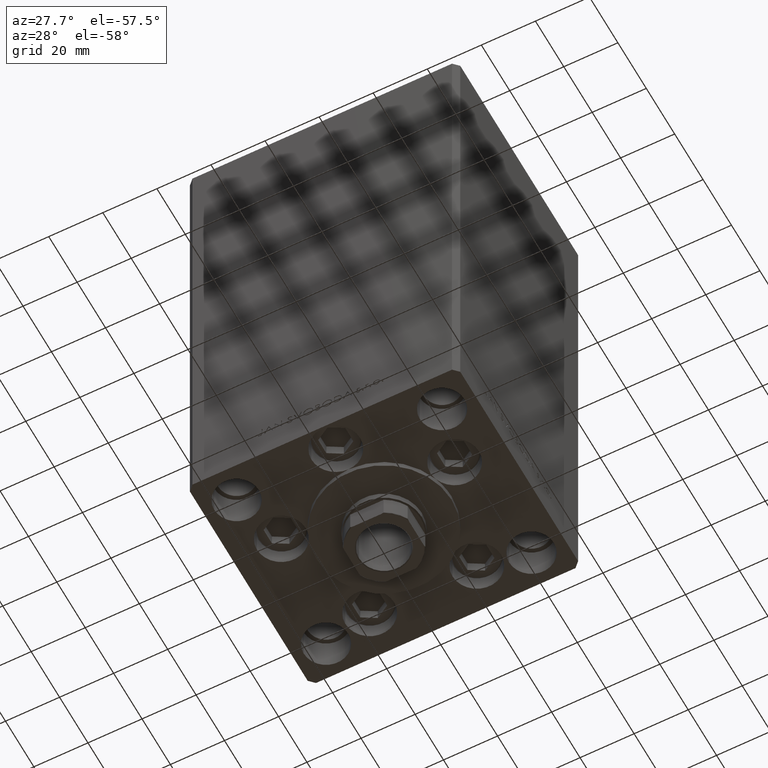
[diagram: clean part render]
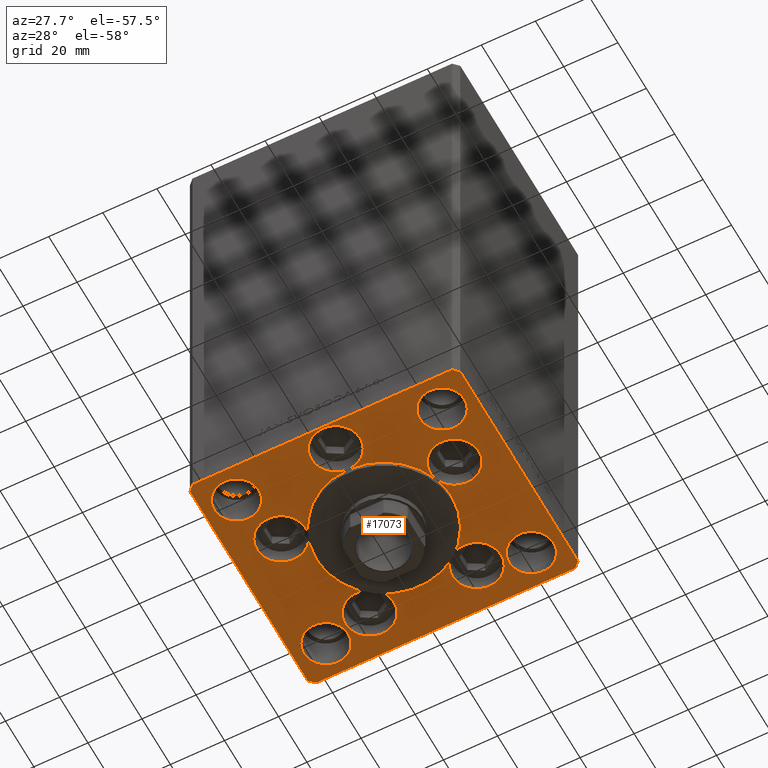
[diagram: same view with one face highlighted and labeled with its STEP entity id]
A machine part, auxiliary view. The second image highlights one B-rep face of the part: STEP entity #17073.
In plain terms, the highlighted planar face has unit normal (0, 0, -1).
Its self-contained STEP definition (entity closure, byte-faithful):
#56 = CIRCLE ( 'NONE', #8003, 8.999999999999998224 ) ;
#530 = DIRECTION ( 'NONE',  ( 0.000000000000000000, 0.000000000000000000, 1.000000000000000000 ) ) ;
#900 = ORIENTED_EDGE ( 'NONE', *, *, #15651, .F. ) ;
#922 = VECTOR ( 'NONE', #11828, 1000.000000000000000 ) ;
#992 = CIRCLE ( 'NONE', #11307, 8.250000000000000000 ) ;
#1167 = ORIENTED_EDGE ( 'NONE', *, *, #39426, .F. ) ;
#1259 = DIRECTION ( 'NONE',  ( 0.000000000000000000, 0.000000000000000000, 1.000000000000000000 ) ) ;
#1356 = CARTESIAN_POINT ( 'NONE',  ( -46.25000000000000000, 31.50000000000000000, 0.000000000000000000 ) ) ;
#1379 = AXIS2_PLACEMENT_3D ( 'NONE', #40950, #33754, #44688 ) ;
#1413 = CARTESIAN_POINT ( 'NONE',  ( -32.05550741379015989, -11.33333333333332860, 0.000000000000000000 ) ) ;
#1427 = EDGE_LOOP ( 'NONE', ( #31710, #49123 ) ) ;
#1474 = ORIENTED_EDGE ( 'NONE', *, *, #33125, .F. ) ;
#1598 = VERTEX_POINT ( 'NONE', #27124 ) ;
#1820 = CIRCLE ( 'NONE', #33562, 9.000000000000001776 ) ;
#2042 = FACE_BOUND ( 'NONE', #34910, .T. ) ;
#2212 = CARTESIAN_POINT ( 'NONE',  ( 50.00000000000000000, 41.50000000000000711, 0.000000000000000000 ) ) ;
#2310 = CARTESIAN_POINT ( 'NONE',  ( 47.99999999999999289, 43.50000000000000000, 0.000000000000000000 ) ) ;
#2368 = VERTEX_POINT ( 'NONE', #30926 ) ;
#2890 = VERTEX_POINT ( 'NONE', #34036 ) ;
#3062 = ORIENTED_EDGE ( 'NONE', *, *, #42829, .F. ) ;
#3084 = CIRCLE ( 'NONE', #29308, 8.250000000000000000 ) ;
#3112 = LINE ( 'NONE', #6595, #21084 ) ;
#3310 = ORIENTED_EDGE ( 'NONE', *, *, #44994, .F. ) ;
#3674 = EDGE_CURVE ( 'NONE', #18399, #34058, #11904, .T. ) ;
#3996 = ORIENTED_EDGE ( 'NONE', *, *, #49111, .T. ) ;
#4092 = CARTESIAN_POINT ( 'NONE',  ( 10.82068048781375147, 27.62499999999998934, 0.000000000000000000 ) ) ;
#4158 = DIRECTION ( 'NONE',  ( 1.000000000000000000, 0.000000000000000000, 0.000000000000000000 ) ) ;
#4270 = CARTESIAN_POINT ( 'NONE',  ( -32.05550741379015989, -11.33333333333332860, 0.000000000000000000 ) ) ;
#4552 = EDGE_CURVE ( 'NONE', #40796, #35261, #36540, .T. ) ;
#4769 = CARTESIAN_POINT ( 'NONE',  ( 29.74999999999999645, 31.50000000000000000, 0.000000000000000000 ) ) ;
#4839 = EDGE_CURVE ( 'NONE', #47040, #46847, #29432, .T. ) ;
#5058 = EDGE_CURVE ( 'NONE', #1598, #11025, #15925, .T. ) ;
#5407 = VERTEX_POINT ( 'NONE', #8218 ) ;
#5493 = EDGE_CURVE ( 'NONE', #7580, #45261, #56, .T. ) ;
#5659 = EDGE_CURVE ( 'NONE', #32206, #45261, #19939, .T. ) ;
#5681 = VECTOR ( 'NONE', #37873, 1000.000000000000000 ) ;
#5917 = CARTESIAN_POINT ( 'NONE',  ( 23.05550741379015633, -11.33333333333332682, 0.000000000000000000 ) ) ;
#5997 = DIRECTION ( 'NONE',  ( -0.7071067811865536790, -0.7071067811865414665, 0.000000000000000000 ) ) ;
#6230 = CARTESIAN_POINT ( 'NONE',  ( -23.57022603955158502, -8.333333333333332149, 0.000000000000000000 ) ) ;
#6461 = EDGE_LOOP ( 'NONE', ( #1167, #41976 ) ) ;
#6595 = CARTESIAN_POINT ( 'NONE',  ( -48.00000000000000711, -43.50000000000002842, 0.000000000000000000 ) ) ;
#6669 = CARTESIAN_POINT ( 'NONE',  ( 46.25000000000000000, 31.50000000000000000, 0.000000000000000000 ) ) ;
#6978 = CIRCLE ( 'NONE', #25210, 8.999999999999998224 ) ;
#7215 = CARTESIAN_POINT ( 'NONE',  ( 19.82068048781374969, 27.62499999999998934, 0.000000000000000000 ) ) ;
#7545 = AXIS2_PLACEMENT_3D ( 'NONE', #10628, #18339, #33503 ) ;
#7558 = CARTESIAN_POINT ( 'NONE',  ( 50.00000000000000000, -41.49999999999992895, 0.000000000000000000 ) ) ;
#7580 = VERTEX_POINT ( 'NONE', #4092 ) ;
#7765 = VERTEX_POINT ( 'NONE', #9278 ) ;
#8003 = AXIS2_PLACEMENT_3D ( 'NONE', #35303, #16411, #31572 ) ;
#8218 = CARTESIAN_POINT ( 'NONE',  ( 23.57022603955158502, -8.333333333333332149, 0.000000000000000000 ) ) ;
#8236 = DIRECTION ( 'NONE',  ( 1.000000000000000000, 0.000000000000000000, 0.000000000000000000 ) ) ;
#8368 = AXIS2_PLACEMENT_3D ( 'NONE', #26078, #37528, #44490 ) ;
#8699 = VERTEX_POINT ( 'NONE', #21216 ) ;
#8801 = CIRCLE ( 'NONE', #19923, 8.250000000000000000 ) ;
#8893 = CIRCLE ( 'NONE', #27944, 8.249999999999992895 ) ;
#8968 = EDGE_CURVE ( 'NONE', #14149, #16474, #8893, .T. ) ;
#9020 = DIRECTION ( 'NONE',  ( 0.000000000000000000, 0.000000000000000000, 1.000000000000000000 ) ) ;
#9278 = CARTESIAN_POINT ( 'NONE',  ( -48.00000000000000711, -43.50000000000002842, 0.000000000000000000 ) ) ;
#9294 = ORIENTED_EDGE ( 'NONE', *, *, #16887, .F. ) ;
#9361 = CIRCLE ( 'NONE', #45877, 9.000000000000001776 ) ;
#9753 = DIRECTION ( 'NONE',  ( 1.000000000000000000, 0.000000000000000000, 0.000000000000000000 ) ) ;
#9835 = ORIENTED_EDGE ( 'NONE', *, *, #24967, .F. ) ;
#9968 = LINE ( 'NONE', #40044, #37521 ) ;
#10217 = EDGE_CURVE ( 'NONE', #35261, #25865, #16885, .T. ) ;
#10309 = CIRCLE ( 'NONE', #15899, 9.000000000000000000 ) ;
#10628 = CARTESIAN_POINT ( 'NONE',  ( -38.00000000000000000, 31.50000000000000000, 0.000000000000000000 ) ) ;
#10630 = CARTESIAN_POINT ( 'NONE',  ( 0.000000000000000000, -6.938893903907228378E-15, 0.000000000000000000 ) ) ;
#10776 = EDGE_LOOP ( 'NONE', ( #44992, #35409 ) ) ;
#10943 = EDGE_CURVE ( 'NONE', #8699, #38030, #9968, .T. ) ;
#10947 = VERTEX_POINT ( 'NONE', #21170 ) ;
#11025 = VERTEX_POINT ( 'NONE', #37546 ) ;
#11237 = CIRCLE ( 'NONE', #43778, 8.999999999999998224 ) ;
#11307 = AXIS2_PLACEMENT_3D ( 'NONE', #37821, #45034, #48527 ) ;
#11432 = DIRECTION ( 'NONE',  ( 0.7071067811865474617, 0.7071067811865474617, 0.000000000000000000 ) ) ;
#11820 = ORIENTED_EDGE ( 'NONE', *, *, #10943, .T. ) ;
#11828 = DIRECTION ( 'NONE',  ( 8.360113137237620037E-17, -1.000000000000000000, 0.000000000000000000 ) ) ;
#11904 = CIRCLE ( 'NONE', #39687, 8.250000000000000000 ) ;
#11951 = VECTOR ( 'NONE', #12428, 1000.000000000000000 ) ;
#12215 = ORIENTED_EDGE ( 'NONE', *, *, #4552, .F. ) ;
#12428 = DIRECTION ( 'NONE',  ( 0.7071067811865487940, -0.7071067811865463515, 0.000000000000000000 ) ) ;
#12692 = DIRECTION ( 'NONE',  ( 1.000000000000000000, 0.000000000000000000, 0.000000000000000000 ) ) ;
#12742 = AXIS2_PLACEMENT_3D ( 'NONE', #20562, #17564, #28748 ) ;
#12807 = CARTESIAN_POINT ( 'NONE',  ( -14.57402977045128978, 20.31249999999999289, 0.000000000000000000 ) ) ;
#13095 = DIRECTION ( 'NONE',  ( 0.000000000000000000, 0.000000000000000000, 1.000000000000000000 ) ) ;
#13109 = CARTESIAN_POINT ( 'NONE',  ( 0.000000000000000000, -34.00000000000000000, 0.000000000000000000 ) ) ;
#13324 = ORIENTED_EDGE ( 'NONE', *, *, #39849, .T. ) ;
#13507 = CIRCLE ( 'NONE', #12742, 25.00000000000000000 ) ;
#13594 = DIRECTION ( 'NONE',  ( 0.000000000000000000, 0.000000000000000000, 1.000000000000000000 ) ) ;
#13728 = CARTESIAN_POINT ( 'NONE',  ( -50.00000000000000000, -41.50000000000004263, 0.000000000000000000 ) ) ;
#13773 = ORIENTED_EDGE ( 'NONE', *, *, #30735, .F. ) ;
#13962 = VERTEX_POINT ( 'NONE', #4769 ) ;
#14022 = CARTESIAN_POINT ( 'NONE',  ( -50.00000000000000711, 41.49999999999999289, 0.000000000000000000 ) ) ;
#14149 = VERTEX_POINT ( 'NONE', #23364 ) ;
#14150 = VERTEX_POINT ( 'NONE', #15656 ) ;
#14176 = CIRCLE ( 'NONE', #43565, 9.000000000000001776 ) ;
#14334 = EDGE_CURVE ( 'NONE', #14401, #2368, #16898, .T. ) ;
#14401 = VERTEX_POINT ( 'NONE', #43716 ) ;
#14717 = DIRECTION ( 'NONE',  ( 1.000000000000000000, 0.000000000000000000, 0.000000000000000000 ) ) ;
#15012 = ORIENTED_EDGE ( 'NONE', *, *, #5058, .F. ) ;
#15086 = AXIS2_PLACEMENT_3D ( 'NONE', #29726, #38166, #22022 ) ;
#15651 = EDGE_CURVE ( 'NONE', #5407, #32206, #42639, .T. ) ;
#15656 = CARTESIAN_POINT ( 'NONE',  ( 50.00000000000000000, -41.49999999999992895, 0.000000000000000000 ) ) ;
#15899 = AXIS2_PLACEMENT_3D ( 'NONE', #39099, #9020, #9753 ) ;
#15925 = CIRCLE ( 'NONE', #43696, 9.000000000000000000 ) ;
#15979 = CARTESIAN_POINT ( 'NONE',  ( -10.82068048781375147, 27.62499999999998934, 0.000000000000000000 ) ) ;
#16003 = VERTEX_POINT ( 'NONE', #6230 ) ;
#16153 = CARTESIAN_POINT ( 'NONE',  ( 0.000000000000000000, -6.938893903907228378E-15, 0.000000000000000000 ) ) ;
#16386 = EDGE_CURVE ( 'NONE', #10947, #16003, #49005, .T. ) ;
#16411 = DIRECTION ( 'NONE',  ( 0.000000000000000000, 0.000000000000000000, 1.000000000000000000 ) ) ;
#16474 = VERTEX_POINT ( 'NONE', #35234 ) ;
#16702 = DIRECTION ( 'NONE',  ( 1.000000000000000000, 1.156482317317871331E-15, 0.000000000000000000 ) ) ;
#16854 = ORIENTED_EDGE ( 'NONE', *, *, #30668, .F. ) ;
#16867 = VECTOR ( 'NONE', #20971, 1000.000000000000000 ) ;
#16885 = CIRCLE ( 'NONE', #43873, 9.000000000000000000 ) ;
#16887 = EDGE_CURVE ( 'NONE', #29565, #1598, #25215, .T. ) ;
#16898 = LINE ( 'NONE', #2212, #17298 ) ;
#17073 = ADVANCED_FACE ( 'NONE', ( #36102, #2042, #17208, #33522, #47519, #30027 ), #40053, .T. ) ;
#17114 = CIRCLE ( 'NONE', #8368, 8.249999999999992895 ) ;
#17208 = FACE_BOUND ( 'NONE', #1427, .T. ) ;
#17268 = DIRECTION ( 'NONE',  ( 1.000000000000000000, 0.000000000000000000, 0.000000000000000000 ) ) ;
#17298 = VECTOR ( 'NONE', #32059, 999.9999999999998863 ) ;
#17357 = CIRCLE ( 'NONE', #31620, 9.000000000000001776 ) ;
#17564 = DIRECTION ( 'NONE',  ( 0.000000000000000000, 0.000000000000000000, 1.000000000000000000 ) ) ;
#17603 = CIRCLE ( 'NONE', #23952, 9.000000000000001776 ) ;
#17789 = ORIENTED_EDGE ( 'NONE', *, *, #23958, .F. ) ;
#17972 = CARTESIAN_POINT ( 'NONE',  ( -32.05550741379015989, -11.33333333333332860, 0.000000000000000000 ) ) ;
#18339 = DIRECTION ( 'NONE',  ( 0.000000000000000000, 0.000000000000000000, 1.000000000000000000 ) ) ;
#18399 = VERTEX_POINT ( 'NONE', #1356 ) ;
#19192 = ORIENTED_EDGE ( 'NONE', *, *, #31047, .T. ) ;
#19335 = DIRECTION ( 'NONE',  ( 0.000000000000000000, 0.000000000000000000, 1.000000000000000000 ) ) ;
#19356 = CIRCLE ( 'NONE', #25667, 25.00000000000000000 ) ;
#19495 = EDGE_CURVE ( 'NONE', #11025, #29565, #26897, .T. ) ;
#19728 = CARTESIAN_POINT ( 'NONE',  ( 0.000000000000000000, -34.00000000000000000, 0.000000000000000000 ) ) ;
#19923 = AXIS2_PLACEMENT_3D ( 'NONE', #45871, #35185, #30968 ) ;
#19939 = CIRCLE ( 'NONE', #31858, 25.00000000000000000 ) ;
#20152 = CARTESIAN_POINT ( 'NONE',  ( -50.00000000000000000, -41.50000000000004263, 0.000000000000000000 ) ) ;
#20272 = EDGE_LOOP ( 'NONE', ( #3996, #13324, #47211, #19192, #26875, #46260, #11820, #29970 ) ) ;
#20562 = CARTESIAN_POINT ( 'NONE',  ( 0.000000000000000000, -6.938893903907228378E-15, 0.000000000000000000 ) ) ;
#20615 = EDGE_CURVE ( 'NONE', #13962, #40860, #3084, .T. ) ;
#20838 = DIRECTION ( 'NONE',  ( 1.000000000000000000, 0.000000000000000000, 0.000000000000000000 ) ) ;
#20915 = VERTEX_POINT ( 'NONE', #5917 ) ;
#20971 = DIRECTION ( 'NONE',  ( -1.000000000000000000, -2.891205793294678326E-16, 0.000000000000000000 ) ) ;
#21084 = VECTOR ( 'NONE', #16702, 1000.000000000000000 ) ;
#21170 = CARTESIAN_POINT ( 'NONE',  ( -25.00000000000000000, -6.938893903907228378E-15, 0.000000000000000000 ) ) ;
#21216 = CARTESIAN_POINT ( 'NONE',  ( -48.00000000000000000, 43.49999999999997158, 0.000000000000000000 ) ) ;
#21241 = CARTESIAN_POINT ( 'NONE',  ( -38.00000000000000711, -31.50000000000000711, 0.000000000000000000 ) ) ;
#21725 = CARTESIAN_POINT ( 'NONE',  ( 0.000000000000000000, -34.00000000000000000, 0.000000000000000000 ) ) ;
#21798 = ORIENTED_EDGE ( 'NONE', *, *, #28236, .F. ) ;
#22022 = DIRECTION ( 'NONE',  ( 1.000000000000000000, 0.000000000000000000, 0.000000000000000000 ) ) ;
#22067 = DIRECTION ( 'NONE',  ( 0.000000000000000000, 0.000000000000000000, 1.000000000000000000 ) ) ;
#22144 = ORIENTED_EDGE ( 'NONE', *, *, #43154, .F. ) ;
#22338 = DIRECTION ( 'NONE',  ( -0.000000000000000000, 0.000000000000000000, 1.000000000000000000 ) ) ;
#22393 = DIRECTION ( 'NONE',  ( 1.000000000000000000, 0.000000000000000000, 0.000000000000000000 ) ) ;
#22581 = DIRECTION ( 'NONE',  ( 1.000000000000000000, 0.000000000000000000, 0.000000000000000000 ) ) ;
#22769 = ORIENTED_EDGE ( 'NONE', *, *, #5659, .F. ) ;
#23358 = DIRECTION ( 'NONE',  ( 0.000000000000000000, 0.000000000000000000, 1.000000000000000000 ) ) ;
#23364 = CARTESIAN_POINT ( 'NONE',  ( 29.75000000000001066, -31.50000000000000711, 0.000000000000000000 ) ) ;
#23664 = DIRECTION ( 'NONE',  ( 1.000000000000000000, 0.000000000000000000, 0.000000000000000000 ) ) ;
#23952 = AXIS2_PLACEMENT_3D ( 'NONE', #4270, #530, #24306 ) ;
#23958 = EDGE_CURVE ( 'NONE', #25865, #10947, #13507, .T. ) ;
#23993 = CIRCLE ( 'NONE', #25568, 25.00000000000000000 ) ;
#24306 = DIRECTION ( 'NONE',  ( 1.000000000000000000, 0.000000000000000000, 0.000000000000000000 ) ) ;
#24556 = CARTESIAN_POINT ( 'NONE',  ( 19.82068048781374969, 27.62499999999998934, 0.000000000000000000 ) ) ;
#24617 = EDGE_LOOP ( 'NONE', ( #21798, #46340, #22144, #16854, #22769, #900, #1474, #45696, #3062, #39781, #15012, #9294, #28088, #37517, #38784, #13773, #3310, #25980, #17789, #33424, #12215, #30969 ) ) ;
#24928 = DIRECTION ( 'NONE',  ( 1.000000000000000000, 0.000000000000000000, 0.000000000000000000 ) ) ;
#24967 = EDGE_CURVE ( 'NONE', #40860, #13962, #8801, .T. ) ;
#25210 = AXIS2_PLACEMENT_3D ( 'NONE', #7215, #25613, #22393 ) ;
#25215 = CIRCLE ( 'NONE', #29982, 9.000000000000000000 ) ;
#25568 = AXIS2_PLACEMENT_3D ( 'NONE', #34970, #19335, #4158 ) ;
#25613 = DIRECTION ( 'NONE',  ( 0.000000000000000000, 0.000000000000000000, 1.000000000000000000 ) ) ;
#25667 = AXIS2_PLACEMENT_3D ( 'NONE', #16153, #23358, #45978 ) ;
#25865 = VERTEX_POINT ( 'NONE', #12807 ) ;
#25980 = ORIENTED_EDGE ( 'NONE', *, *, #16386, .F. ) ;
#26022 = DIRECTION ( 'NONE',  ( 0.000000000000000000, 0.000000000000000000, 1.000000000000000000 ) ) ;
#26078 = CARTESIAN_POINT ( 'NONE',  ( 38.00000000000000711, -31.50000000000000711, 0.000000000000000000 ) ) ;
#26409 = CARTESIAN_POINT ( 'NONE',  ( 32.05550741379015989, -11.33333333333332860, 0.000000000000000000 ) ) ;
#26651 = VERTEX_POINT ( 'NONE', #36122 ) ;
#26670 = VERTEX_POINT ( 'NONE', #13728 ) ;
#26875 = ORIENTED_EDGE ( 'NONE', *, *, #14334, .T. ) ;
#26897 = CIRCLE ( 'NONE', #38780, 9.000000000000000000 ) ;
#27124 = CARTESIAN_POINT ( 'NONE',  ( 9.000000000000000000, -34.00000000000000000, 0.000000000000000000 ) ) ;
#27910 = DIRECTION ( 'NONE',  ( 1.000000000000000000, 0.000000000000000000, 0.000000000000000000 ) ) ;
#27944 = AXIS2_PLACEMENT_3D ( 'NONE', #40035, #48221, #48473 ) ;
#28088 = ORIENTED_EDGE ( 'NONE', *, *, #19495, .F. ) ;
#28236 = EDGE_CURVE ( 'NONE', #45261, #25865, #23993, .T. ) ;
#28410 = LINE ( 'NONE', #2310, #16867 ) ;
#28748 = DIRECTION ( 'NONE',  ( 1.000000000000000000, 0.000000000000000000, 0.000000000000000000 ) ) ;
#28753 = DIRECTION ( 'NONE',  ( 0.000000000000000000, 0.000000000000000000, 1.000000000000000000 ) ) ;
#28927 = DIRECTION ( 'NONE',  ( 0.000000000000000000, 0.000000000000000000, 1.000000000000000000 ) ) ;
#29128 = AXIS2_PLACEMENT_3D ( 'NONE', #48120, #28753, #43908 ) ;
#29169 = CARTESIAN_POINT ( 'NONE',  ( -41.05550741379015989, -11.33333333333332682, 0.000000000000000000 ) ) ;
#29308 = AXIS2_PLACEMENT_3D ( 'NONE', #34838, #1259, #12692 ) ;
#29432 = CIRCLE ( 'NONE', #34196, 8.250000000000000000 ) ;
#29565 = VERTEX_POINT ( 'NONE', #48696 ) ;
#29667 = CARTESIAN_POINT ( 'NONE',  ( -46.25000000000000711, -31.50000000000000711, 0.000000000000000000 ) ) ;
#29726 = CARTESIAN_POINT ( 'NONE',  ( -19.82068048781374969, 27.62499999999998934, 0.000000000000000000 ) ) ;
#29969 = EDGE_CURVE ( 'NONE', #38030, #26670, #30730, .T. ) ;
#29970 = ORIENTED_EDGE ( 'NONE', *, *, #29969, .T. ) ;
#29982 = AXIS2_PLACEMENT_3D ( 'NONE', #21725, #28927, #48549 ) ;
#30027 = FACE_OUTER_BOUND ( 'NONE', #20272, .T. ) ;
#30668 = EDGE_CURVE ( 'NONE', #45261, #43125, #11237, .T. ) ;
#30730 = LINE ( 'NONE', #45889, #922 ) ;
#30735 = EDGE_CURVE ( 'NONE', #44133, #2890, #17603, .T. ) ;
#30926 = CARTESIAN_POINT ( 'NONE',  ( 47.99999999999999289, 43.50000000000000000, 0.000000000000000000 ) ) ;
#30968 = DIRECTION ( 'NONE',  ( 1.000000000000000000, 0.000000000000000000, 0.000000000000000000 ) ) ;
#30969 = ORIENTED_EDGE ( 'NONE', *, *, #48715, .F. ) ;
#31047 = EDGE_CURVE ( 'NONE', #14150, #14401, #34416, .T. ) ;
#31547 = AXIS2_PLACEMENT_3D ( 'NONE', #10630, #22067, #42179 ) ;
#31572 = DIRECTION ( 'NONE',  ( 1.000000000000000000, 0.000000000000000000, 0.000000000000000000 ) ) ;
#31592 = EDGE_CURVE ( 'NONE', #2368, #8699, #28410, .T. ) ;
#31620 = AXIS2_PLACEMENT_3D ( 'NONE', #34270, #38719, #46189 ) ;
#31710 = ORIENTED_EDGE ( 'NONE', *, *, #39668, .F. ) ;
#31858 = AXIS2_PLACEMENT_3D ( 'NONE', #48188, #41209, #34020 ) ;
#32059 = DIRECTION ( 'NONE',  ( -0.7071067811865512365, 0.7071067811865439090, 0.000000000000000000 ) ) ;
#32206 = VERTEX_POINT ( 'NONE', #45593 ) ;
#32438 = AXIS2_PLACEMENT_3D ( 'NONE', #1413, #13095, #46418 ) ;
#32460 = EDGE_CURVE ( 'NONE', #46847, #47040, #992, .T. ) ;
#33017 = DIRECTION ( 'NONE',  ( 1.000000000000000000, 0.000000000000000000, 0.000000000000000000 ) ) ;
#33125 = EDGE_CURVE ( 'NONE', #37574, #5407, #1820, .T. ) ;
#33424 = ORIENTED_EDGE ( 'NONE', *, *, #10217, .F. ) ;
#33503 = DIRECTION ( 'NONE',  ( 1.000000000000000000, 0.000000000000000000, 0.000000000000000000 ) ) ;
#33522 = FACE_BOUND ( 'NONE', #10776, .T. ) ;
#33562 = AXIS2_PLACEMENT_3D ( 'NONE', #44307, #48535, #48280 ) ;
#33754 = DIRECTION ( 'NONE',  ( 0.000000000000000000, 0.000000000000000000, 1.000000000000000000 ) ) ;
#34020 = DIRECTION ( 'NONE',  ( 1.000000000000000000, 0.000000000000000000, 0.000000000000000000 ) ) ;
#34036 = CARTESIAN_POINT ( 'NONE',  ( -23.05550741379015633, -11.33333333333332860, 0.000000000000000000 ) ) ;
#34058 = VERTEX_POINT ( 'NONE', #36207 ) ;
#34196 = AXIS2_PLACEMENT_3D ( 'NONE', #21241, #47339, #17268 ) ;
#34270 = CARTESIAN_POINT ( 'NONE',  ( 32.05550741379015989, -11.33333333333332860, 0.000000000000000000 ) ) ;
#34416 = LINE ( 'NONE', #7558, #5681 ) ;
#34796 = EDGE_CURVE ( 'NONE', #26651, #14150, #44743, .T. ) ;
#34838 = CARTESIAN_POINT ( 'NONE',  ( 38.00000000000000000, 31.50000000000000000, 0.000000000000000000 ) ) ;
#34876 = EDGE_CURVE ( 'NONE', #16003, #11025, #19356, .T. ) ;
#34910 = EDGE_LOOP ( 'NONE', ( #9835, #40173 ) ) ;
#34923 = CARTESIAN_POINT ( 'NONE',  ( -28.82068048781374969, 27.62499999999998934, 0.000000000000000000 ) ) ;
#34970 = CARTESIAN_POINT ( 'NONE',  ( 0.000000000000000000, -6.938893903907228378E-15, 0.000000000000000000 ) ) ;
#35185 = DIRECTION ( 'NONE',  ( 0.000000000000000000, 0.000000000000000000, 1.000000000000000000 ) ) ;
#35234 = CARTESIAN_POINT ( 'NONE',  ( 46.25000000000000000, -31.50000000000000711, 0.000000000000000000 ) ) ;
#35261 = VERTEX_POINT ( 'NONE', #34923 ) ;
#35303 = CARTESIAN_POINT ( 'NONE',  ( 19.82068048781374969, 27.62499999999998934, 0.000000000000000000 ) ) ;
#35409 = ORIENTED_EDGE ( 'NONE', *, *, #32460, .F. ) ;
#36102 = FACE_BOUND ( 'NONE', #24617, .T. ) ;
#36122 = CARTESIAN_POINT ( 'NONE',  ( 48.00000000000000711, -43.49999999999992184, 0.000000000000000000 ) ) ;
#36207 = CARTESIAN_POINT ( 'NONE',  ( -29.75000000000000000, 31.50000000000000000, 0.000000000000000000 ) ) ;
#36404 = CIRCLE ( 'NONE', #32438, 9.000000000000001776 ) ;
#36540 = CIRCLE ( 'NONE', #15086, 9.000000000000000000 ) ;
#37517 = ORIENTED_EDGE ( 'NONE', *, *, #34876, .F. ) ;
#37521 = VECTOR ( 'NONE', #5997, 1000.000000000000000 ) ;
#37528 = DIRECTION ( 'NONE',  ( 0.000000000000000000, 0.000000000000000000, 1.000000000000000000 ) ) ;
#37546 = CARTESIAN_POINT ( 'NONE',  ( 0.000000000000000000, -25.00000000000000000, 0.000000000000000000 ) ) ;
#37574 = VERTEX_POINT ( 'NONE', #42218 ) ;
#37821 = CARTESIAN_POINT ( 'NONE',  ( -38.00000000000000711, -31.50000000000000711, 0.000000000000000000 ) ) ;
#37873 = DIRECTION ( 'NONE',  ( 0.000000000000000000, 1.000000000000000000, 0.000000000000000000 ) ) ;
#38030 = VERTEX_POINT ( 'NONE', #14022 ) ;
#38166 = DIRECTION ( 'NONE',  ( 0.000000000000000000, 0.000000000000000000, 1.000000000000000000 ) ) ;
#38369 = DIRECTION ( 'NONE',  ( 0.000000000000000000, 0.000000000000000000, 1.000000000000000000 ) ) ;
#38711 = AXIS2_PLACEMENT_3D ( 'NONE', #41197, #22338, #22581 ) ;
#38719 = DIRECTION ( 'NONE',  ( 0.000000000000000000, 0.000000000000000000, 1.000000000000000000 ) ) ;
#38780 = AXIS2_PLACEMENT_3D ( 'NONE', #13109, #13594, #20838 ) ;
#38784 = ORIENTED_EDGE ( 'NONE', *, *, #43686, .F. ) ;
#39099 = CARTESIAN_POINT ( 'NONE',  ( -19.82068048781374969, 27.62499999999998934, 0.000000000000000000 ) ) ;
#39426 = EDGE_CURVE ( 'NONE', #16474, #14149, #17114, .T. ) ;
#39668 = EDGE_CURVE ( 'NONE', #34058, #18399, #48842, .T. ) ;
#39687 = AXIS2_PLACEMENT_3D ( 'NONE', #43821, #40319, #24928 ) ;
#39781 = ORIENTED_EDGE ( 'NONE', *, *, #41151, .F. ) ;
#39819 = CARTESIAN_POINT ( 'NONE',  ( -29.75000000000000711, -31.50000000000000711, 0.000000000000000000 ) ) ;
#39849 = EDGE_CURVE ( 'NONE', #7765, #26651, #3112, .T. ) ;
#40035 = CARTESIAN_POINT ( 'NONE',  ( 38.00000000000000711, -31.50000000000000711, 0.000000000000000000 ) ) ;
#40044 = CARTESIAN_POINT ( 'NONE',  ( -48.00000000000000000, 43.49999999999997158, 0.000000000000000000 ) ) ;
#40053 = PLANE ( 'NONE',  #38711 ) ;
#40173 = ORIENTED_EDGE ( 'NONE', *, *, #20615, .F. ) ;
#40319 = DIRECTION ( 'NONE',  ( 0.000000000000000000, 0.000000000000000000, 1.000000000000000000 ) ) ;
#40796 = VERTEX_POINT ( 'NONE', #15979 ) ;
#40860 = VERTEX_POINT ( 'NONE', #6669 ) ;
#40950 = CARTESIAN_POINT ( 'NONE',  ( 0.000000000000000000, -6.938893903907228378E-15, 0.000000000000000000 ) ) ;
#41151 = EDGE_CURVE ( 'NONE', #11025, #5407, #48182, .T. ) ;
#41197 = CARTESIAN_POINT ( 'NONE',  ( 0.000000000000000000, 0.000000000000000000, 0.000000000000000000 ) ) ;
#41209 = DIRECTION ( 'NONE',  ( 0.000000000000000000, 0.000000000000000000, 1.000000000000000000 ) ) ;
#41680 = CARTESIAN_POINT ( 'NONE',  ( -19.82068048781374969, 27.62499999999998934, 0.000000000000000000 ) ) ;
#41976 = ORIENTED_EDGE ( 'NONE', *, *, #8968, .F. ) ;
#42179 = DIRECTION ( 'NONE',  ( 1.000000000000000000, 0.000000000000000000, 0.000000000000000000 ) ) ;
#42218 = CARTESIAN_POINT ( 'NONE',  ( 41.05550741379015989, -11.33333333333332860, 0.000000000000000000 ) ) ;
#42639 = CIRCLE ( 'NONE', #31547, 25.00000000000000000 ) ;
#42829 = EDGE_CURVE ( 'NONE', #5407, #20915, #9361, .T. ) ;
#43125 = VERTEX_POINT ( 'NONE', #47755 ) ;
#43154 = EDGE_CURVE ( 'NONE', #43125, #7580, #6978, .T. ) ;
#43245 = LINE ( 'NONE', #20152, #11951 ) ;
#43565 = AXIS2_PLACEMENT_3D ( 'NONE', #17972, #44561, #14717 ) ;
#43686 = EDGE_CURVE ( 'NONE', #2890, #16003, #36404, .T. ) ;
#43696 = AXIS2_PLACEMENT_3D ( 'NONE', #19728, #38369, #27910 ) ;
#43716 = CARTESIAN_POINT ( 'NONE',  ( 50.00000000000000000, 41.50000000000000711, 0.000000000000000000 ) ) ;
#43778 = AXIS2_PLACEMENT_3D ( 'NONE', #24556, #46928, #8236 ) ;
#43821 = CARTESIAN_POINT ( 'NONE',  ( -38.00000000000000000, 31.50000000000000000, 0.000000000000000000 ) ) ;
#43873 = AXIS2_PLACEMENT_3D ( 'NONE', #41680, #26022, #33017 ) ;
#43908 = DIRECTION ( 'NONE',  ( 1.000000000000000000, 0.000000000000000000, 0.000000000000000000 ) ) ;
#44133 = VERTEX_POINT ( 'NONE', #29169 ) ;
#44307 = CARTESIAN_POINT ( 'NONE',  ( 32.05550741379015989, -11.33333333333332860, 0.000000000000000000 ) ) ;
#44490 = DIRECTION ( 'NONE',  ( 1.000000000000000000, 0.000000000000000000, 0.000000000000000000 ) ) ;
#44497 = EDGE_CURVE ( 'NONE', #20915, #37574, #17357, .T. ) ;
#44561 = DIRECTION ( 'NONE',  ( 0.000000000000000000, 0.000000000000000000, 1.000000000000000000 ) ) ;
#44688 = DIRECTION ( 'NONE',  ( 1.000000000000000000, 0.000000000000000000, 0.000000000000000000 ) ) ;
#44743 = LINE ( 'NONE', #45486, #47120 ) ;
#44992 = ORIENTED_EDGE ( 'NONE', *, *, #4839, .F. ) ;
#44994 = EDGE_CURVE ( 'NONE', #16003, #44133, #14176, .T. ) ;
#45034 = DIRECTION ( 'NONE',  ( 0.000000000000000000, 0.000000000000000000, 1.000000000000000000 ) ) ;
#45261 = VERTEX_POINT ( 'NONE', #45671 ) ;
#45486 = CARTESIAN_POINT ( 'NONE',  ( 48.00000000000000711, -43.49999999999992184, 0.000000000000000000 ) ) ;
#45593 = CARTESIAN_POINT ( 'NONE',  ( 25.00000000000000000, -3.877276906038844941E-15, 0.000000000000000000 ) ) ;
#45671 = CARTESIAN_POINT ( 'NONE',  ( 14.57402977045128623, 20.31249999999998579, 0.000000000000000000 ) ) ;
#45696 = ORIENTED_EDGE ( 'NONE', *, *, #44497, .F. ) ;
#45871 = CARTESIAN_POINT ( 'NONE',  ( 38.00000000000000000, 31.50000000000000000, 0.000000000000000000 ) ) ;
#45877 = AXIS2_PLACEMENT_3D ( 'NONE', #26409, #46294, #23664 ) ;
#45889 = CARTESIAN_POINT ( 'NONE',  ( -50.00000000000000711, 41.49999999999999289, 0.000000000000000000 ) ) ;
#45978 = DIRECTION ( 'NONE',  ( 1.000000000000000000, 0.000000000000000000, 0.000000000000000000 ) ) ;
#46189 = DIRECTION ( 'NONE',  ( 1.000000000000000000, 0.000000000000000000, 0.000000000000000000 ) ) ;
#46260 = ORIENTED_EDGE ( 'NONE', *, *, #31592, .T. ) ;
#46294 = DIRECTION ( 'NONE',  ( 0.000000000000000000, 0.000000000000000000, 1.000000000000000000 ) ) ;
#46340 = ORIENTED_EDGE ( 'NONE', *, *, #5493, .F. ) ;
#46418 = DIRECTION ( 'NONE',  ( 1.000000000000000000, 0.000000000000000000, 0.000000000000000000 ) ) ;
#46847 = VERTEX_POINT ( 'NONE', #29667 ) ;
#46928 = DIRECTION ( 'NONE',  ( 0.000000000000000000, 0.000000000000000000, 1.000000000000000000 ) ) ;
#47040 = VERTEX_POINT ( 'NONE', #39819 ) ;
#47120 = VECTOR ( 'NONE', #11432, 1000.000000000000114 ) ;
#47211 = ORIENTED_EDGE ( 'NONE', *, *, #34796, .T. ) ;
#47339 = DIRECTION ( 'NONE',  ( 0.000000000000000000, 0.000000000000000000, 1.000000000000000000 ) ) ;
#47519 = FACE_BOUND ( 'NONE', #6461, .T. ) ;
#47755 = CARTESIAN_POINT ( 'NONE',  ( 28.82068048781374969, 27.62499999999998934, 0.000000000000000000 ) ) ;
#48120 = CARTESIAN_POINT ( 'NONE',  ( 0.000000000000000000, -6.938893903907228378E-15, 0.000000000000000000 ) ) ;
#48182 = CIRCLE ( 'NONE', #29128, 25.00000000000000000 ) ;
#48188 = CARTESIAN_POINT ( 'NONE',  ( 0.000000000000000000, -6.938893903907228378E-15, 0.000000000000000000 ) ) ;
#48221 = DIRECTION ( 'NONE',  ( 0.000000000000000000, 0.000000000000000000, 1.000000000000000000 ) ) ;
#48280 = DIRECTION ( 'NONE',  ( 1.000000000000000000, 0.000000000000000000, 0.000000000000000000 ) ) ;
#48473 = DIRECTION ( 'NONE',  ( 1.000000000000000000, 0.000000000000000000, 0.000000000000000000 ) ) ;
#48527 = DIRECTION ( 'NONE',  ( 1.000000000000000000, 0.000000000000000000, 0.000000000000000000 ) ) ;
#48535 = DIRECTION ( 'NONE',  ( 0.000000000000000000, 0.000000000000000000, 1.000000000000000000 ) ) ;
#48549 = DIRECTION ( 'NONE',  ( 1.000000000000000000, 0.000000000000000000, 0.000000000000000000 ) ) ;
#48696 = CARTESIAN_POINT ( 'NONE',  ( -9.000000000000000000, -34.00000000000000000, 0.000000000000000000 ) ) ;
#48715 = EDGE_CURVE ( 'NONE', #25865, #40796, #10309, .T. ) ;
#48842 = CIRCLE ( 'NONE', #7545, 8.250000000000000000 ) ;
#49005 = CIRCLE ( 'NONE', #1379, 25.00000000000000000 ) ;
#49111 = EDGE_CURVE ( 'NONE', #26670, #7765, #43245, .T. ) ;
#49123 = ORIENTED_EDGE ( 'NONE', *, *, #3674, .F. ) ;